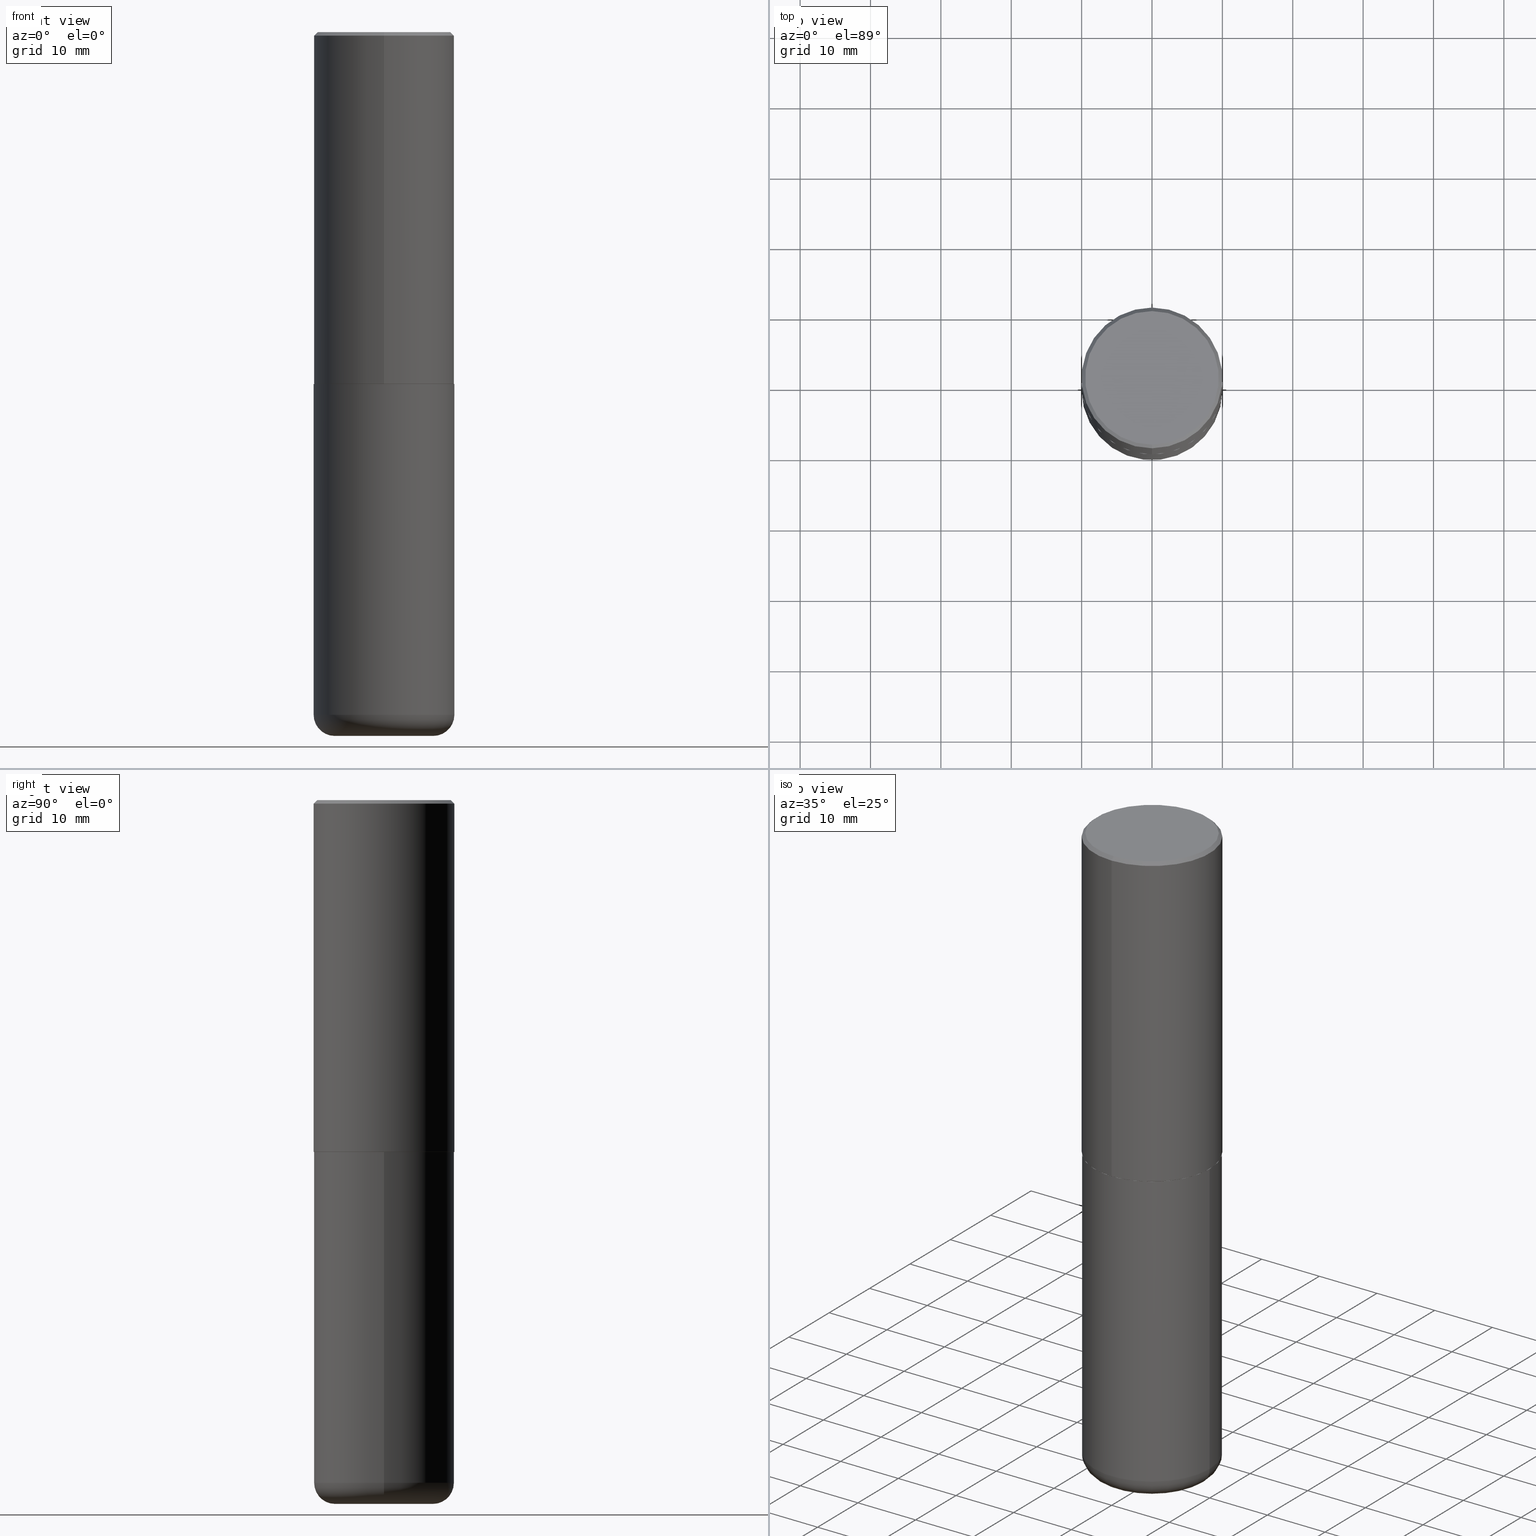
[diagram: canonical four-view strip — front | top / right | iso, engineering-drawing reading convention]
A machine part, canonical four-view strip (front | top / right | iso — engineering-drawing reading convention). The complete STEP part file that produces these views, byte-faithful:
ISO-10303-21;
HEADER;
FILE_DESCRIPTION (( 'STEP AP203' ),
    '1' );
FILE_NAME ('74649.STEP',
    '2024-03-06T15:51:12',
    ( '' ),
    ( '' ),
    'SwSTEP 2.0',
    'SolidWorks 2023',
    '' );
FILE_SCHEMA (( 'CONFIG_CONTROL_DESIGN' ));
ENDSEC;

DATA;
#1 = CARTESIAN_POINT ( 'NONE',  ( 2.793854037008762797E-15, 0.3926999999999931101, -1.968500000000001693 ) ) ;
#2 = DIRECTION ( 'NONE',  ( -6.982962677686265133E-15, -1.000000000000000000, 3.491137977679279424E-15 ) ) ;
#3 = AXIS2_PLACEMENT_3D ( 'NONE', #91, #248, #215 ) ;
#4 = EDGE_LOOP ( 'NONE', ( #75, #83, #159, #365 ) ) ;
#5 = DIRECTION ( 'NONE',  ( -2.447902336346030930E-29, 3.487996385144809755E-15, 1.000000000000000000 ) ) ;
#6 = CARTESIAN_POINT ( 'NONE',  ( 0.2756000000000000116, -1.567046654499579837E-14, -3.937000000000000277 ) ) ;
#7 = ORIENTED_EDGE ( 'NONE', *, *, #229, .F. ) ;
#8 =( LENGTH_UNIT ( ) NAMED_UNIT ( * ) SI_UNIT ( $, .METRE. ) );
#9 = ORIENTED_EDGE ( 'NONE', *, *, #338, .T. ) ;
#10 = DATE_TIME_ROLE ( 'creation_date' ) ;
#11 = VERTEX_POINT ( 'NONE', #177 ) ;
#12 = AXIS2_PLACEMENT_3D ( 'NONE', #307, #114, #311 ) ;
#13 = PERSON_AND_ORGANIZATION_ROLE ( 'creator' ) ;
#14 = ADVANCED_FACE ( 'NONE', ( #15 ), #238, .T. ) ;
#15 = FACE_OUTER_BOUND ( 'NONE', #4, .T. ) ;
#16 = CIRCLE ( 'NONE', #121, 0.3937000000000002720 ) ;
#17 = APPROVAL_DATE_TIME ( #210, #137 ) ;
#18 = EDGE_CURVE ( 'NONE', #11, #260, #16, .T. ) ;
#19 = PERSON_AND_ORGANIZATION ( #86, #180 ) ;
#20 = ADVANCED_FACE ( 'NONE', ( #149 ), #406, .T. ) ;
#21 = CARTESIAN_POINT ( 'NONE',  ( 1.599214952469751148E-45, -2.278708545868848433E-31, -6.533001454857425165E-17 ) ) ;
#22 = DIRECTION ( 'NONE',  ( -2.447902336346030930E-29, 3.487996385144809755E-15, 1.000000000000000000 ) ) ;
#23 = AXIS2_PLACEMENT_3D ( 'NONE', #204, #93, #166 ) ;
#24 = DIRECTION ( 'NONE',  ( -2.447902336346030930E-29, 3.487996385144809755E-15, 1.000000000000000000 ) ) ;
#25 = DIRECTION ( 'NONE',  ( -6.982962677686265133E-15, -1.000000000000000000, 3.478288761986584267E-15 ) ) ;
#26 = DIRECTION ( 'NONE',  ( 2.447902336346030930E-29, -3.487996385144809360E-15, -1.000000000000000000 ) ) ;
#27 = AXIS2_PLACEMENT_3D ( 'NONE', #287, #389, #100 ) ;
#28 = AXIS2_PLACEMENT_3D ( 'NONE', #102, #138, #36 ) ;
#29 = EDGE_CURVE ( 'NONE', #246, #89, #95, .T. ) ;
#30 = CARTESIAN_POINT ( 'NONE',  ( 0.3937000000000000499, -1.608281049111317408E-14, -3.818900000000000183 ) ) ;
#31 = CARTESIAN_POINT ( 'NONE',  ( 2.609533152651357803E-15, 0.3737000000000000322, -1.336129256402902755E-15 ) ) ;
#32 = ORIENTED_EDGE ( 'NONE', *, *, #375, .T. ) ;
#33 = PERSON_AND_ORGANIZATION ( #86, #180 ) ;
#34 = DIRECTION ( 'NONE',  ( -2.447902336346030930E-29, 3.487996385144809755E-15, 1.000000000000000000 ) ) ;
#35 = EDGE_LOOP ( 'NONE', ( #418, #141, #64, #297 ) ) ;
#36 = DIRECTION ( 'NONE',  ( 1.000000000000000000, -6.982962677686268288E-15, 4.883557194083112901E-29 ) ) ;
#37 = CARTESIAN_POINT ( 'NONE',  ( 4.818695749097162682E-29, -6.866120884157559141E-15, -1.968500000000000361 ) ) ;
#38 = VECTOR ( 'NONE', #148, 39.37007874015748854 ) ;
#39 = ORIENTED_EDGE ( 'NONE', *, *, #317, .T. ) ;
#40 = FACE_OUTER_BOUND ( 'NONE', #399, .T. ) ;
#41 = ORIENTED_EDGE ( 'NONE', *, *, #353, .T. ) ;
#42 = COORDINATED_UNIVERSAL_TIME_OFFSET ( 5, 0, .BEHIND. ) ;
#43 = ORIENTED_EDGE ( 'NONE', *, *, #208, .F. ) ;
#44 = CIRCLE ( 'NONE', #313, 0.3937000000000000499 ) ;
#45 = CIRCLE ( 'NONE', #272, 0.2756000000000000116 ) ;
#46 = ORIENTED_EDGE ( 'NONE', *, *, #151, .T. ) ;
#47 = PERSON_AND_ORGANIZATION ( #86, #180 ) ;
#48 = ADVANCED_FACE ( 'NONE', ( #337 ), #56, .T. ) ;
#49 = CLOSED_SHELL ( 'NONE', ( #309, #362, #277, #282, #415, #20, #332, #219 ) ) ;
#50 = CALENDAR_DATE ( 2024, 6, 3 ) ;
#51 = PRODUCT ( '74649', '74649', '', ( #163 ) ) ;
#52 = LOCAL_TIME ( 10, 51, 12.00000000000000000, #302 ) ;
#53 = CARTESIAN_POINT ( 'NONE',  ( 4.895804672692082949E-31, -6.975992770289649092E-17, -0.02000000000000008715 ) ) ;
#54 = AXIS2_PLACEMENT_3D ( 'NONE', #63, #133, #385 ) ;
#55 = DIRECTION ( 'NONE',  ( -6.982962677686265922E-15, -1.000000000000000000, 3.487996385144809755E-15 ) ) ;
#56 = PLANE ( 'NONE',  #360 ) ;
#57 = CARTESIAN_POINT ( 'NONE',  ( 0.3937000000000000499, -2.749192406205083217E-15, 1.919750796630860172E-29 ) ) ;
#58 = EDGE_CURVE ( 'NONE', #323, #268, #106, .T. ) ;
#59 = DIRECTION ( 'NONE',  ( 4.937700262164543309E-15, 0.7071067811865444641, -0.7071067811865503483 ) ) ;
#60 = DIRECTION ( 'NONE',  ( 1.000000000000000000, -6.982962677686265922E-15, 4.876176775795935793E-29 ) ) ;
#61 = AXIS2_PLACEMENT_3D ( 'NONE', #394, #306, #285 ) ;
#62 = APPROVAL_PERSON_ORGANIZATION ( #226, #137, #388 ) ;
#63 = CARTESIAN_POINT ( 'NONE',  ( 9.339000823940418668E-29, -1.333361808490808928E-14, -3.818900000000000183 ) ) ;
#64 = ORIENTED_EDGE ( 'NONE', *, *, #366, .T. ) ;
#65 = EDGE_CURVE ( 'NONE', #11, #104, #266, .T. ) ;
#66 = PERSON_AND_ORGANIZATION ( #86, #180 ) ;
#67 = DIRECTION ( 'NONE',  ( -6.982962677686265922E-15, -1.000000000000000000, 3.487996385144809755E-15 ) ) ;
#68 = ORIENTED_EDGE ( 'NONE', *, *, #317, .F. ) ;
#69 = PERSON_AND_ORGANIZATION_ROLE ( 'design_owner' ) ;
#70 = CARTESIAN_POINT ( 'NONE',  ( -2.700978061722651252E-15, -0.3937000000000001054, -0.01999999999999870978 ) ) ;
#71 = AXIS2_PLACEMENT_3D ( 'NONE', #279, #22, #116 ) ;
#72 = CONICAL_SURFACE ( 'NONE', #240, 0.3937000000000000499, 0.7853981633974476129 ) ;
#73 = ORIENTED_EDGE ( 'NONE', *, *, #199, .T. ) ;
#74 = DIRECTION ( 'NONE',  ( 0.000000000000000000, 0.000000000000000000, 1.000000000000000000 ) ) ;
#75 = ORIENTED_EDGE ( 'NONE', *, *, #79, .F. ) ;
#76 = CC_DESIGN_PERSON_AND_ORGANIZATION_ASSIGNMENT ( #66, #69, ( #51 ) ) ;
#77 = PERSON_AND_ORGANIZATION ( #86, #180 ) ;
#78 = AXIS2_PLACEMENT_3D ( 'NONE', #146, #414, #255 ) ;
#79 = EDGE_CURVE ( 'NONE', #323, #379, #231, .T. ) ;
#80 = APPROVAL_DATE_TIME ( #242, #273 ) ;
#81 = SECURITY_CLASSIFICATION_LEVEL ( 'unclassified' ) ;
#82 = VECTOR ( 'NONE', #94, 39.37007874015748143 ) ;
#83 = ORIENTED_EDGE ( 'NONE', *, *, #58, .T. ) ;
#84 = FACE_OUTER_BOUND ( 'NONE', #345, .T. ) ;
#85 = DIRECTION ( 'NONE',  ( 2.438088387897960049E-29, -3.491481338843145188E-15, -1.000000000000000000 ) ) ;
#86 = PERSON ( 'UNSPECIFIED', 'UNSPECIFIED', 'UNSPECIFIED', ('UNSPECIFIED'), ('UNSPECIFIED'), ('UNSPECIFIED') ) ;
#87 = EDGE_CURVE ( 'NONE', #390, #110, #312, .T. ) ;
#88 = LINE ( 'NONE', #218, #398 ) ;
#89 = VERTEX_POINT ( 'NONE', #6 ) ;
#90 = CARTESIAN_POINT ( 'NONE',  ( 0.3937000000000000499, -9.622173421717814924E-15, -1.968500000000000139 ) ) ;
#91 = CARTESIAN_POINT ( 'NONE',  ( 9.627810689950883669E-29, -1.374596203102546341E-14, -3.937000000000000277 ) ) ;
#92 = CARTESIAN_POINT ( 'NONE',  ( -0.3937000000000000499, -1.053621133422057529E-14, -3.818900000000000183 ) ) ;
#93 = DIRECTION ( 'NONE',  ( -2.445468806185136597E-29, 3.491481338843145583E-15, 1.000000000000000000 ) ) ;
#94 = DIRECTION ( 'NONE',  ( -2.445468806185136877E-29, 3.491481338843145188E-15, 1.000000000000000000 ) ) ;
#95 = CIRCLE ( 'NONE', #3, 0.2756000000000000116 ) ;
#96 = EDGE_CURVE ( 'NONE', #264, #379, #157, .T. ) ;
#97 = AXIS2_PLACEMENT_3D ( 'NONE', #156, #284, #247 ) ;
#98 = VERTEX_POINT ( 'NONE', #227 ) ;
#99 = CARTESIAN_POINT ( 'NONE',  ( 0.2756000000000000116, -1.525812259887842581E-14, -3.818900000000000183 ) ) ;
#100 = DIRECTION ( 'NONE',  ( 1.000000000000000000, -6.982962677686265133E-15, 0.000000000000000000 ) ) ;
#101 = ORIENTED_EDGE ( 'NONE', *, *, #18, .T. ) ;
#102 = CARTESIAN_POINT ( 'NONE',  ( 9.339000823940418668E-29, -1.333361808490808928E-14, -3.818900000000000183 ) ) ;
#103 = CARTESIAN_POINT ( 'NONE',  ( 0.000000000000000000, 0.000000000000000000, 0.000000000000000000 ) ) ;
#104 = VERTEX_POINT ( 'NONE', #70 ) ;
#105 = CALENDAR_DATE ( 2024, 6, 3 ) ;
#106 = CIRCLE ( 'NONE', #129, 0.3937000000000000499 ) ;
#107 = VECTOR ( 'NONE', #347, 39.37007874015748854 ) ;
#108 = ORIENTED_EDGE ( 'NONE', *, *, #410, .T. ) ;
#109 = CC_DESIGN_DATE_AND_TIME_ASSIGNMENT ( #179, #402, ( #175 ) ) ;
#110 = VERTEX_POINT ( 'NONE', #195 ) ;
#111 = AXIS2_PLACEMENT_3D ( 'NONE', #170, #74, #135 ) ;
#112 = PRODUCT_DEFINITION_SHAPE ( 'NONE', 'NONE',  #371 ) ;
#113 = CC_DESIGN_APPROVAL ( #137, ( #243 ) ) ;
#114 = DIRECTION ( 'NONE',  ( -2.447902336346030930E-29, 3.487996385144809360E-15, 1.000000000000000000 ) ) ;
#115 = DIRECTION ( 'NONE',  ( 6.982962677686265922E-15, 1.000000000000000000, -3.487996385144809360E-15 ) ) ;
#116 = DIRECTION ( 'NONE',  ( -6.982962677686265133E-15, -1.000000000000000000, 3.478288761986584267E-15 ) ) ;
#117 = MANIFOLD_SOLID_BREP ( 'Body-Move/Copy2[1]', #335 ) ;
#118 = CC_DESIGN_PERSON_AND_ORGANIZATION_ASSIGNMENT ( #298, #403, ( #243 ) ) ;
#119 = ORIENTED_EDGE ( 'NONE', *, *, #186, .T. ) ;
#120 = DIRECTION ( 'NONE',  ( 1.000000000000000000, -6.982962677686265922E-15, 0.000000000000000000 ) ) ;
#121 = AXIS2_PLACEMENT_3D ( 'NONE', #256, #381, #152 ) ;
#122 = AXIS2_PLACEMENT_3D ( 'NONE', #216, #85, #339 ) ;
#123 = DIRECTION ( 'NONE',  ( 2.447902336346030930E-29, -3.487996385144809755E-15, -1.000000000000000000 ) ) ;
#124 = CARTESIAN_POINT ( 'NONE',  ( -0.2756000000000000116, -1.116195879274560421E-14, -3.937000000000000277 ) ) ;
#125 = APPLICATION_PROTOCOL_DEFINITION ( 'international standard', 'config_control_design', 1994, #205 ) ;
#126 = DIRECTION ( 'NONE',  ( -2.447902336346030930E-29, 3.487996385144809755E-15, 1.000000000000000000 ) ) ;
#127 = EDGE_LOOP ( 'NONE', ( #275, #39, #316, #329 ) ) ;
#128 = DATE_AND_TIME ( #296, #377 ) ;
#129 = AXIS2_PLACEMENT_3D ( 'NONE', #310, #303, #262 ) ;
#130 = DIRECTION ( 'NONE',  ( -2.447902336346030930E-29, 3.487996385144809755E-15, 1.000000000000000000 ) ) ;
#131 = ORIENTED_EDGE ( 'NONE', *, *, #338, .F. ) ;
#132 = DIRECTION ( 'NONE',  ( 1.000000000000000000, -6.982962677686273021E-15, 0.000000000000000000 ) ) ;
#133 = DIRECTION ( 'NONE',  ( -2.445468806185136597E-29, 3.491481338843145583E-15, 1.000000000000000000 ) ) ;
#134 = ORIENTED_EDGE ( 'NONE', *, *, #29, .F. ) ;
#135 = DIRECTION ( 'NONE',  ( 1.000000000000000000, 0.000000000000000000, 0.000000000000000000 ) ) ;
#136 = VERTEX_POINT ( 'NONE', #417 ) ;
#137 = APPROVAL ( #261, 'UNSPECIFIED' ) ;
#138 = DIRECTION ( 'NONE',  ( -2.445468806185136597E-29, 3.491481338843145583E-15, 1.000000000000000000 ) ) ;
#139 = CIRCLE ( 'NONE', #78, 0.1180999999999999966 ) ;
#140 = VECTOR ( 'NONE', #374, 39.37007874015748854 ) ;
#141 = ORIENTED_EDGE ( 'NONE', *, *, #342, .F. ) ;
#142 = ADVANCED_FACE ( 'NONE', ( #40 ), #222, .T. ) ;
#143 = LOCAL_TIME ( 10, 51, 12.00000000000000000, #351 ) ;
#144 = APPROVAL_ROLE ( '' ) ;
#145 = EDGE_CURVE ( 'NONE', #269, #104, #44, .T. ) ;
#146 = CARTESIAN_POINT ( 'NONE',  ( -0.2756000000000000116, -1.137536230515325427E-14, -3.818900000000000183 ) ) ;
#147 = AXIS2_PLACEMENT_3D ( 'NONE', #21, #376, #55 ) ;
#148 = DIRECTION ( 'NONE',  ( -4.851104656540959542E-15, -0.7071067811865493491, -0.7071067811865454633 ) ) ;
#149 = FACE_OUTER_BOUND ( 'NONE', #197, .T. ) ;
#150 = CARTESIAN_POINT ( 'NONE',  ( 4.895804672692082949E-31, -6.975992770289649092E-17, -0.02000000000000008715 ) ) ;
#151 = EDGE_CURVE ( 'NONE', #268, #323, #251, .T. ) ;
#152 = DIRECTION ( 'NONE',  ( -6.982962677686265922E-15, -1.000000000000000000, 3.469453890861393601E-15 ) ) ;
#153 = ORIENTED_EDGE ( 'NONE', *, *, #342, .T. ) ;
#154 = DIRECTION ( 'NONE',  ( 2.447902336346030930E-29, -3.487996385144809755E-15, -1.000000000000000000 ) ) ;
#155 = DESIGN_CONTEXT ( 'detailed design', #205, 'design' ) ;
#156 = CARTESIAN_POINT ( 'NONE',  ( 4.816247846760815671E-29, -6.862632887772413316E-15, -1.967500000000000027 ) ) ;
#157 = CIRCLE ( 'NONE', #27, 0.3937000000000000499 ) ;
#158 = AXIS2_PLACEMENT_3D ( 'NONE', #31, #26, #115 ) ;
#159 = ORIENTED_EDGE ( 'NONE', *, *, #263, .T. ) ;
#160 = DIRECTION ( 'NONE',  ( 6.982962677686265133E-15, 1.000000000000000000, -3.491137977679279424E-15 ) ) ;
#161 = FACE_OUTER_BOUND ( 'NONE', #225, .T. ) ;
#162 = ORIENTED_EDGE ( 'NONE', *, *, #254, .F. ) ;
#163 = MECHANICAL_CONTEXT ( 'NONE', #178, 'mechanical' ) ;
#164 = DIRECTION ( 'NONE',  ( -2.447902336346030930E-29, 3.487996385144809360E-15, 1.000000000000000000 ) ) ;
#165 = ORIENTED_EDGE ( 'NONE', *, *, #353, .F. ) ;
#166 = DIRECTION ( 'NONE',  ( 1.000000000000000000, -6.982962677686265133E-15, 0.000000000000000000 ) ) ;
#167 = DIRECTION ( 'NONE',  ( -2.447902336346030930E-29, 3.487996385144809755E-15, 1.000000000000000000 ) ) ;
#168 = AXIS2_PLACEMENT_3D ( 'NONE', #220, #171, #322 ) ;
#169 = ORIENTED_EDGE ( 'NONE', *, *, #229, .T. ) ;
#170 = CARTESIAN_POINT ( 'NONE',  ( 0.000000000000000000, 0.000000000000000000, 0.000000000000000000 ) ) ;
#171 = DIRECTION ( 'NONE',  ( -2.445468806185136597E-29, 3.491481338843145583E-15, 1.000000000000000000 ) ) ;
#172 = ORIENTED_EDGE ( 'NONE', *, *, #199, .F. ) ;
#173 = ORIENTED_EDGE ( 'NONE', *, *, #208, .T. ) ;
#174 = LOCAL_TIME ( 10, 51, 12.00000000000000000, #207 ) ;
#175 = SECURITY_CLASSIFICATION ( '', '', #81 ) ;
#176 = PRODUCT_RELATED_PRODUCT_CATEGORY ( 'detail', '', ( #51 ) ) ;
#177 = CARTESIAN_POINT ( 'NONE',  ( -2.749192406205036674E-15, -0.3937000000000070998, -1.967499999999998694 ) ) ;
#178 = APPLICATION_CONTEXT ( 'configuration controlled 3d designs of mechanical parts and assemblies' ) ;
#179 = DATE_AND_TIME ( #300, #174 ) ;
#180 = ORGANIZATION ( 'UNSPECIFIED', 'UNSPECIFIED', '' ) ;
#181 = DIMENSIONAL_EXPONENTS ( 1.000000000000000000, 0.000000000000000000, 0.000000000000000000, 0.000000000000000000, 0.000000000000000000, 0.000000000000000000, 0.000000000000000000 ) ;
#182 = CC_DESIGN_PERSON_AND_ORGANIZATION_ASSIGNMENT ( #19, #13, ( #243 ) ) ;
#183 = DIRECTION ( 'NONE',  ( 2.438088387897960049E-29, -3.491481338843145188E-15, -1.000000000000000000 ) ) ;
#184 = FACE_OUTER_BOUND ( 'NONE', #196, .T. ) ;
#185 =( GEOMETRIC_REPRESENTATION_CONTEXT ( 3 ) GLOBAL_UNCERTAINTY_ASSIGNED_CONTEXT ( ( #327 ) ) GLOBAL_UNIT_ASSIGNED_CONTEXT ( ( #391, #321, #288 ) ) REPRESENTATION_CONTEXT ( 'NONE', 'WORKASPACE' ) );
#186 = EDGE_CURVE ( 'NONE', #98, #136, #213, .T. ) ;
#187 = LINE ( 'NONE', #281, #331 ) ;
#188 = CARTESIAN_POINT ( 'NONE',  ( 0.000000000000000000, 0.000000000000000000, 0.000000000000000000 ) ) ;
#189 = CARTESIAN_POINT ( 'NONE',  ( 9.627810689950883669E-29, -1.374596203102546341E-14, -3.937000000000000277 ) ) ;
#190 = FACE_OUTER_BOUND ( 'NONE', #35, .T. ) ;
#191 = LINE ( 'NONE', #314, #38 ) ;
#192 = CC_DESIGN_APPROVAL ( #384, ( #371 ) ) ;
#193 = PLANE ( 'NONE',  #158 ) ;
#194 = LENGTH_MEASURE_WITH_UNIT ( LENGTH_MEASURE( 0.02539999999999999897 ), #8 );
#195 = CARTESIAN_POINT ( 'NONE',  ( -2.742209443527348687E-15, -0.3927000000000069324, -1.968499999999999028 ) ) ;
#196 = EDGE_LOOP ( 'NONE', ( #43, #201 ) ) ;
#197 = EDGE_LOOP ( 'NONE', ( #7, #354, #320, #68 ) ) ;
#198 = CYLINDRICAL_SURFACE ( 'NONE', #367, 0.3937000000000001609 ) ;
#199 = EDGE_CURVE ( 'NONE', #104, #269, #404, .T. ) ;
#200 = DIRECTION ( 'NONE',  ( -2.445468806185136597E-29, 3.491481338843145583E-15, 1.000000000000000000 ) ) ;
#201 = ORIENTED_EDGE ( 'NONE', *, *, #87, .F. ) ;
#202 = PERSON_AND_ORGANIZATION_ROLE ( 'creator' ) ;
#203 = ORIENTED_EDGE ( 'NONE', *, *, #366, .F. ) ;
#204 = CARTESIAN_POINT ( 'NONE',  ( 4.813905344975441835E-29, -6.872981015512731707E-15, -1.968500000000000139 ) ) ;
#205 = APPLICATION_CONTEXT ( 'configuration controlled 3d designs of mechanical parts and assemblies' ) ;
#206 = AXIS2_PLACEMENT_3D ( 'NONE', #188, #378, #308 ) ;
#207 = COORDINATED_UNIVERSAL_TIME_OFFSET ( 5, 0, .BEHIND. ) ;
#208 = EDGE_CURVE ( 'NONE', #110, #390, #407, .T. ) ;
#209 = TOROIDAL_SURFACE ( 'NONE', #28, 0.2756000000000000116, 0.1181000000000000105 ) ;
#210 = DATE_AND_TIME ( #368, #299 ) ;
#211 = ADVANCED_FACE ( 'NONE', ( #293 ), #392, .T. ) ;
#212 = CARTESIAN_POINT ( 'NONE',  ( 2.797406750687540030E-15, 0.3936999999999934441, -1.967500000000001359 ) ) ;
#213 = CIRCLE ( 'NONE', #340, 0.3737000000000000322 ) ;
#214 = CARTESIAN_POINT ( 'NONE',  ( 4.818695749097162682E-29, -6.866120884157559141E-15, -1.968500000000000361 ) ) ;
#215 = DIRECTION ( 'NONE',  ( 1.000000000000000000, -6.982962677686265922E-15, 0.000000000000000000 ) ) ;
#216 = CARTESIAN_POINT ( 'NONE',  ( 4.813905344975441835E-29, -6.872981015512731707E-15, -1.968500000000000139 ) ) ;
#217 = ORIENTED_EDGE ( 'NONE', *, *, #263, .F. ) ;
#218 = CARTESIAN_POINT ( 'NONE',  ( 2.749192406205083217E-15, 0.3936999999999999389, -0.02000000000000146105 ) ) ;
#219 = ADVANCED_FACE ( 'NONE', ( #161 ), #193, .F. ) ;
#220 = CARTESIAN_POINT ( 'NONE',  ( 9.339000823940418668E-29, -1.333361808490808928E-14, -3.818900000000000183 ) ) ;
#221 = LINE ( 'NONE', #252, #140 ) ;
#222 = TOROIDAL_SURFACE ( 'NONE', #54, 0.2756000000000000116, 0.1181000000000000105 ) ;
#223 = VECTOR ( 'NONE', #286, 39.37007874015748143 ) ;
#224 = DIRECTION ( 'NONE',  ( -2.447902336346030930E-29, 3.487996385144809755E-15, 1.000000000000000000 ) ) ;
#225 = EDGE_LOOP ( 'NONE', ( #153, #119 ) ) ;
#226 = PERSON_AND_ORGANIZATION ( #86, #180 ) ;
#227 = CARTESIAN_POINT ( 'NONE',  ( -2.632373081744936315E-15, -0.3737000000000000322, 1.238134234580041113E-15 ) ) ;
#228 = ORIENTED_EDGE ( 'NONE', *, *, #65, .F. ) ;
#229 = EDGE_CURVE ( 'NONE', #390, #260, #346, .T. ) ;
#230 = APPLICATION_PROTOCOL_DEFINITION ( 'international standard', 'config_control_design', 1994, #178 ) ;
#231 = LINE ( 'NONE', #325, #82 ) ;
#232 = ORIENTED_EDGE ( 'NONE', *, *, #186, .F. ) ;
#233 = APPROVAL_DATE_TIME ( #318, #384 ) ;
#234 = CIRCLE ( 'NONE', #23, 0.3937000000000000499 ) ;
#235 = EDGE_LOOP ( 'NONE', ( #165, #253, #357, #294 ) ) ;
#236 = CARTESIAN_POINT ( 'NONE',  ( 0.000000000000000000, 0.000000000000000000, 0.000000000000000000 ) ) ;
#237 = ORIENTED_EDGE ( 'NONE', *, *, #18, .F. ) ;
#238 = CYLINDRICAL_SURFACE ( 'NONE', #61, 0.3937000000000000499 ) ;
#239 = AXIS2_PLACEMENT_3D ( 'NONE', #259, #126, #352 ) ;
#240 = AXIS2_PLACEMENT_3D ( 'NONE', #53, #123, #160 ) ;
#241 = ADVANCED_FACE ( 'NONE', ( #84 ), #380, .F. ) ;
#242 = DATE_AND_TIME ( #50, #52 ) ;
#243 = PRODUCT_DEFINITION_FORMATION_WITH_SPECIFIED_SOURCE ( 'ANY', '', #51, .NOT_KNOWN. ) ;
#244 = CC_DESIGN_PERSON_AND_ORGANIZATION_ASSIGNMENT ( #33, #202, ( #371 ) ) ;
#245 = CYLINDRICAL_SURFACE ( 'NONE', #206, 0.3937000000000001609 ) ;
#246 = VERTEX_POINT ( 'NONE', #124 ) ;
#247 = DIRECTION ( 'NONE',  ( -6.982962677686265922E-15, -1.000000000000000000, 3.469453890861393601E-15 ) ) ;
#248 = DIRECTION ( 'NONE',  ( -2.445468806185136597E-29, 3.491481338843145583E-15, 1.000000000000000000 ) ) ;
#249 = CC_DESIGN_APPROVAL ( #273, ( #175 ) ) ;
#250 = EDGE_LOOP ( 'NONE', ( #131, #134 ) ) ;
#251 = CIRCLE ( 'NONE', #168, 0.3937000000000000499 ) ;
#252 = CARTESIAN_POINT ( 'NONE',  ( -2.742209443527348687E-15, -0.3927000000000069324, -1.968499999999999028 ) ) ;
#253 = ORIENTED_EDGE ( 'NONE', *, *, #29, .T. ) ;
#254 = EDGE_CURVE ( 'NONE', #110, #11, #221, .T. ) ;
#255 = DIRECTION ( 'NONE',  ( -1.000000000000000000, 7.105427357601005014E-15, 0.000000000000000000 ) ) ;
#256 = CARTESIAN_POINT ( 'NONE',  ( 4.816247846760815671E-29, -6.862632887772413316E-15, -1.967500000000000027 ) ) ;
#257 = LINE ( 'NONE', #57, #223 ) ;
#258 = APPROVAL_ROLE ( '' ) ;
#259 = CARTESIAN_POINT ( 'NONE',  ( 4.818695749097162682E-29, -6.866120884157559141E-15, -1.968500000000000361 ) ) ;
#260 = VERTEX_POINT ( 'NONE', #212 ) ;
#261 = APPROVAL_STATUS ( 'not_yet_approved' ) ;
#262 = DIRECTION ( 'NONE',  ( 1.000000000000000000, -6.982962677686267499E-15, 0.000000000000000000 ) ) ;
#263 = EDGE_CURVE ( 'NONE', #268, #264, #257, .T. ) ;
#264 = VERTEX_POINT ( 'NONE', #90 ) ;
#265 = FACE_OUTER_BOUND ( 'NONE', #235, .T. ) ;
#266 = LINE ( 'NONE', #358, #270 ) ;
#267 = MANIFOLD_SOLID_BREP ( 'Body-Move/Copy2[2]', #49 ) ;
#268 = VERTEX_POINT ( 'NONE', #30 ) ;
#269 = VERTEX_POINT ( 'NONE', #343 ) ;
#270 = VECTOR ( 'NONE', #164, 39.37007874015748143 ) ;
#271 = CIRCLE ( 'NONE', #369, 0.1180999999999999966 ) ;
#272 = AXIS2_PLACEMENT_3D ( 'NONE', #412, #278, #120 ) ;
#273 = APPROVAL ( #334, 'UNSPECIFIED' ) ;
#274 = PERSON_AND_ORGANIZATION_ROLE ( 'classification_officer' ) ;
#275 = ORIENTED_EDGE ( 'NONE', *, *, #328, .F. ) ;
#276 = FACE_OUTER_BOUND ( 'NONE', #326, .T. ) ;
#277 = ADVANCED_FACE ( 'NONE', ( #350 ), #336, .T. ) ;
#278 = DIRECTION ( 'NONE',  ( -2.445468806185136597E-29, 3.491481338843145583E-15, 1.000000000000000000 ) ) ;
#279 = CARTESIAN_POINT ( 'NONE',  ( 4.818695749097162682E-29, -6.866120884157559141E-15, -1.968500000000000361 ) ) ;
#280 = ORIENTED_EDGE ( 'NONE', *, *, #401, .F. ) ;
#281 = CARTESIAN_POINT ( 'NONE',  ( 2.797406750687515181E-15, 0.3937000000000001609, -1.373224176831512065E-15 ) ) ;
#282 = ADVANCED_FACE ( 'NONE', ( #190 ), #72, .T. ) ;
#283 = AXIS2_PLACEMENT_3D ( 'NONE', #319, #34, #348 ) ;
#284 = DIRECTION ( 'NONE',  ( -2.447902336346030930E-29, 3.487996385144809755E-15, 1.000000000000000000 ) ) ;
#285 = DIRECTION ( 'NONE',  ( 1.000000000000000000, -6.982962677686265922E-15, 4.876176775795935793E-29 ) ) ;
#286 = DIRECTION ( 'NONE',  ( -2.445468806185136877E-29, 3.491481338843145188E-15, 1.000000000000000000 ) ) ;
#287 = CARTESIAN_POINT ( 'NONE',  ( 4.813905344975441835E-29, -6.872981015512731707E-15, -1.968500000000000139 ) ) ;
#288 =( NAMED_UNIT ( * ) SI_UNIT ( $, .STERADIAN. ) SOLID_ANGLE_UNIT ( ) );
#289 = CC_DESIGN_PERSON_AND_ORGANIZATION_ASSIGNMENT ( #47, #274, ( #175 ) ) ;
#290 = CARTESIAN_POINT ( 'NONE',  ( 4.895804672692082949E-31, -6.975992770289649092E-17, -0.02000000000000008715 ) ) ;
#291 = CONICAL_SURFACE ( 'NONE', #372, 0.3926999999999999935, 0.7853981633974141952 ) ;
#292 = FACE_OUTER_BOUND ( 'NONE', #127, .T. ) ;
#293 = FACE_OUTER_BOUND ( 'NONE', #373, .T. ) ;
#294 = ORIENTED_EDGE ( 'NONE', *, *, #58, .F. ) ;
#295 = CARTESIAN_POINT ( 'NONE',  ( -0.3937000000000000499, -7.305892799522895709E-15, -1.968500000000000139 ) ) ;
#296 = CALENDAR_DATE ( 2024, 6, 3 ) ;
#297 = ORIENTED_EDGE ( 'NONE', *, *, #145, .T. ) ;
#298 = PERSON_AND_ORGANIZATION ( #86, #180 ) ;
#299 = LOCAL_TIME ( 10, 51, 12.00000000000000000, #333 ) ;
#300 = CALENDAR_DATE ( 2024, 6, 3 ) ;
#301 = AXIS2_PLACEMENT_3D ( 'NONE', #37, #167, #315 ) ;
#302 = COORDINATED_UNIVERSAL_TIME_OFFSET ( 5, 0, .BEHIND. ) ;
#303 = DIRECTION ( 'NONE',  ( -2.445468806185136597E-29, 3.491481338843145583E-15, 1.000000000000000000 ) ) ;
#304 = CC_DESIGN_DATE_AND_TIME_ASSIGNMENT ( #128, #10, ( #371 ) ) ;
#305 = PLANE ( 'NONE',  #12 ) ;
#306 = DIRECTION ( 'NONE',  ( -2.445468806185136597E-29, 3.491481338843145583E-15, 1.000000000000000000 ) ) ;
#307 = CARTESIAN_POINT ( 'NONE',  ( 4.818695749097161561E-29, -6.866120884157558352E-15, -1.968500000000000139 ) ) ;
#308 = DIRECTION ( 'NONE',  ( -6.982962677686265922E-15, -1.000000000000000000, 3.487996385144809360E-15 ) ) ;
#309 = ADVANCED_FACE ( 'NONE', ( #382 ), #291, .T. ) ;
#310 = CARTESIAN_POINT ( 'NONE',  ( 9.339000823940418668E-29, -1.333361808490808928E-14, -3.818900000000000183 ) ) ;
#311 = DIRECTION ( 'NONE',  ( -6.982962677686265922E-15, -1.000000000000000000, 3.487996385144809360E-15 ) ) ;
#312 = CIRCLE ( 'NONE', #239, 0.3926999999999999935 ) ;
#313 = AXIS2_PLACEMENT_3D ( 'NONE', #290, #224, #2 ) ;
#314 = CARTESIAN_POINT ( 'NONE',  ( -2.700978061722651252E-15, -0.3937000000000001054, -0.01999999999999870978 ) ) ;
#315 = DIRECTION ( 'NONE',  ( -6.982962677686265133E-15, -1.000000000000000000, 3.478288761986584267E-15 ) ) ;
#316 = ORIENTED_EDGE ( 'NONE', *, *, #65, .T. ) ;
#317 = EDGE_CURVE ( 'NONE', #260, #11, #361, .T. ) ;
#318 = DATE_AND_TIME ( #105, #143 ) ;
#319 = CARTESIAN_POINT ( 'NONE',  ( 4.895804672692082949E-31, -6.975992770289649092E-17, -0.02000000000000008715 ) ) ;
#320 = ORIENTED_EDGE ( 'NONE', *, *, #254, .T. ) ;
#321 =( NAMED_UNIT ( * ) PLANE_ANGLE_UNIT ( ) SI_UNIT ( $, .RADIAN. ) );
#322 = DIRECTION ( 'NONE',  ( 1.000000000000000000, -6.982962677686267499E-15, 0.000000000000000000 ) ) ;
#323 = VERTEX_POINT ( 'NONE', #92 ) ;
#324 = APPROVAL_PERSON_ORGANIZATION ( #355, #384, #258 ) ;
#325 = CARTESIAN_POINT ( 'NONE',  ( -0.3937000000000000499, 2.797406750687514786E-15, -1.936584745033356735E-29 ) ) ;
#326 = EDGE_LOOP ( 'NONE', ( #101, #397, #172, #228 ) ) ;
#327 = UNCERTAINTY_MEASURE_WITH_UNIT (LENGTH_MEASURE( 1.000000000000000082E-05 ), #391, 'distance_accuracy_value', 'NONE');
#328 = EDGE_CURVE ( 'NONE', #260, #269, #187, .T. ) ;
#329 = ORIENTED_EDGE ( 'NONE', *, *, #145, .F. ) ;
#330 = CC_DESIGN_SECURITY_CLASSIFICATION ( #175, ( #243 ) ) ;
#331 = VECTOR ( 'NONE', #416, 39.37007874015748143 ) ;
#332 = ADVANCED_FACE ( 'NONE', ( #184 ), #305, .F. ) ;
#333 = COORDINATED_UNIVERSAL_TIME_OFFSET ( 5, 0, .BEHIND. ) ;
#334 = APPROVAL_STATUS ( 'not_yet_approved' ) ;
#335 = CLOSED_SHELL ( 'NONE', ( #211, #142, #241, #14, #405, #48 ) ) ;
#336 = CONICAL_SURFACE ( 'NONE', #387, 0.3937000000000000499, 0.7853981633974476129 ) ;
#337 = FACE_OUTER_BOUND ( 'NONE', #250, .T. ) ;
#338 = EDGE_CURVE ( 'NONE', #89, #246, #45, .T. ) ;
#339 = DIRECTION ( 'NONE',  ( -1.000000000000000000, 6.982962677686265922E-15, -4.876176775795935793E-29 ) ) ;
#340 = AXIS2_PLACEMENT_3D ( 'NONE', #356, #130, #67 ) ;
#341 = ORIENTED_EDGE ( 'NONE', *, *, #151, .F. ) ;
#342 = EDGE_CURVE ( 'NONE', #136, #98, #349, .T. ) ;
#343 = CARTESIAN_POINT ( 'NONE',  ( 2.749192406205083217E-15, 0.3936999999999999389, -0.02000000000000146105 ) ) ;
#344 = DIRECTION ( 'NONE',  ( -1.000000000000000000, 6.982962677686265922E-15, -4.876176775795935793E-29 ) ) ;
#345 = EDGE_LOOP ( 'NONE', ( #359, #108 ) ) ;
#346 = LINE ( 'NONE', #409, #107 ) ;
#347 = DIRECTION ( 'NONE',  ( 5.024295867787889629E-15, 0.7071067811865257013, 0.7071067811865691111 ) ) ;
#348 = DIRECTION ( 'NONE',  ( -6.982962677686265133E-15, -1.000000000000000000, 3.491137977679279424E-15 ) ) ;
#349 = CIRCLE ( 'NONE', #147, 0.3737000000000000322 ) ;
#350 = FACE_OUTER_BOUND ( 'NONE', #363, .T. ) ;
#351 = COORDINATED_UNIVERSAL_TIME_OFFSET ( 5, 0, .BEHIND. ) ;
#352 = DIRECTION ( 'NONE',  ( -6.982962677686265133E-15, -1.000000000000000000, 3.478288761986584267E-15 ) ) ;
#353 = EDGE_CURVE ( 'NONE', #246, #323, #139, .T. ) ;
#354 = ORIENTED_EDGE ( 'NONE', *, *, #87, .T. ) ;
#355 = PERSON_AND_ORGANIZATION ( #86, #180 ) ;
#356 = CARTESIAN_POINT ( 'NONE',  ( 1.599214952469751148E-45, -2.278708545868848433E-31, -6.533001454857425165E-17 ) ) ;
#357 = ORIENTED_EDGE ( 'NONE', *, *, #401, .T. ) ;
#358 = CARTESIAN_POINT ( 'NONE',  ( -2.749192406205084005E-15, -0.3937000000000001609, 1.373224176831512065E-15 ) ) ;
#359 = ORIENTED_EDGE ( 'NONE', *, *, #96, .T. ) ;
#360 = AXIS2_PLACEMENT_3D ( 'NONE', #189, #183, #344 ) ;
#361 = CIRCLE ( 'NONE', #97, 0.3937000000000002720 ) ;
#362 = ADVANCED_FACE ( 'NONE', ( #276 ), #245, .T. ) ;
#363 = EDGE_LOOP ( 'NONE', ( #232, #32, #73, #203 ) ) ;
#364 = DIRECTION ( 'NONE',  ( -6.982962677686265922E-15, -1.000000000000000000, 3.487996385144809360E-15 ) ) ;
#365 = ORIENTED_EDGE ( 'NONE', *, *, #410, .F. ) ;
#366 = EDGE_CURVE ( 'NONE', #136, #269, #88, .T. ) ;
#367 = AXIS2_PLACEMENT_3D ( 'NONE', #236, #5, #364 ) ;
#368 = CALENDAR_DATE ( 2024, 6, 3 ) ;
#369 = AXIS2_PLACEMENT_3D ( 'NONE', #99, #383, #132 ) ;
#370 = APPROVAL_PERSON_ORGANIZATION ( #77, #273, #144 ) ;
#371 = PRODUCT_DEFINITION ( 'UNKNOWN', '', #243, #155 ) ;
#372 = AXIS2_PLACEMENT_3D ( 'NONE', #214, #24, #25 ) ;
#373 = EDGE_LOOP ( 'NONE', ( #46, #408, #393, #217 ) ) ;
#374 = DIRECTION ( 'NONE',  ( -4.937700262164378437E-15, -0.7071067811865208164, 0.7071067811865739960 ) ) ;
#375 = EDGE_CURVE ( 'NONE', #98, #104, #191, .T. ) ;
#376 = DIRECTION ( 'NONE',  ( -2.447902336346030930E-29, 3.487996385144809755E-15, 1.000000000000000000 ) ) ;
#377 = LOCAL_TIME ( 10, 51, 12.00000000000000000, #42 ) ;
#378 = DIRECTION ( 'NONE',  ( -2.447902336346030930E-29, 3.487996385144809755E-15, 1.000000000000000000 ) ) ;
#379 = VERTEX_POINT ( 'NONE', #295 ) ;
#380 = PLANE ( 'NONE',  #122 ) ;
#381 = DIRECTION ( 'NONE',  ( -2.447902336346030930E-29, 3.487996385144809755E-15, 1.000000000000000000 ) ) ;
#382 = FACE_OUTER_BOUND ( 'NONE', #386, .T. ) ;
#383 = DIRECTION ( 'NONE',  ( -6.982962677686266711E-15, -1.000000000000000000, 3.491481338843145583E-15 ) ) ;
#384 = APPROVAL ( #395, 'UNSPECIFIED' ) ;
#385 = DIRECTION ( 'NONE',  ( 1.000000000000000000, -6.982962677686268288E-15, 4.883557194083112901E-29 ) ) ;
#386 = EDGE_LOOP ( 'NONE', ( #173, #169, #237, #162 ) ) ;
#387 = AXIS2_PLACEMENT_3D ( 'NONE', #150, #154, #411 ) ;
#388 = APPROVAL_ROLE ( '' ) ;
#389 = DIRECTION ( 'NONE',  ( -2.445468806185136597E-29, 3.491481338843145583E-15, 1.000000000000000000 ) ) ;
#390 = VERTEX_POINT ( 'NONE', #1 ) ;
#391 =( CONVERSION_BASED_UNIT ( 'INCH', #194 ) LENGTH_UNIT ( ) NAMED_UNIT ( #181 ) );
#392 = CYLINDRICAL_SURFACE ( 'NONE', #413, 0.3937000000000000499 ) ;
#393 = ORIENTED_EDGE ( 'NONE', *, *, #96, .F. ) ;
#394 = CARTESIAN_POINT ( 'NONE',  ( 0.000000000000000000, 0.000000000000000000, 0.000000000000000000 ) ) ;
#395 = APPROVAL_STATUS ( 'not_yet_approved' ) ;
#396 = ADVANCED_BREP_SHAPE_REPRESENTATION ( '74649', ( #117, #267, #111 ), #185 ) ;
#397 = ORIENTED_EDGE ( 'NONE', *, *, #328, .T. ) ;
#398 = VECTOR ( 'NONE', #59, 39.37007874015748854 ) ;
#399 = EDGE_LOOP ( 'NONE', ( #9, #41, #341, #280 ) ) ;
#400 = SHAPE_DEFINITION_REPRESENTATION ( #112, #396 ) ;
#401 = EDGE_CURVE ( 'NONE', #89, #268, #271, .T. ) ;
#402 = DATE_TIME_ROLE ( 'classification_date' ) ;
#403 = PERSON_AND_ORGANIZATION_ROLE ( 'design_supplier' ) ;
#404 = CIRCLE ( 'NONE', #283, 0.3937000000000000499 ) ;
#405 = ADVANCED_FACE ( 'NONE', ( #265 ), #209, .T. ) ;
#406 = CONICAL_SURFACE ( 'NONE', #71, 0.3926999999999999935, 0.7853981633974141952 ) ;
#407 = CIRCLE ( 'NONE', #301, 0.3926999999999999935 ) ;
#408 = ORIENTED_EDGE ( 'NONE', *, *, #79, .T. ) ;
#409 = CARTESIAN_POINT ( 'NONE',  ( 2.790301323329961110E-15, 0.3926999999999931101, -1.968500000000001693 ) ) ;
#410 = EDGE_CURVE ( 'NONE', #379, #264, #234, .T. ) ;
#411 = DIRECTION ( 'NONE',  ( 6.982962677686265133E-15, 1.000000000000000000, -3.491137977679279424E-15 ) ) ;
#412 = CARTESIAN_POINT ( 'NONE',  ( 9.627810689950883669E-29, -1.374596203102546341E-14, -3.937000000000000277 ) ) ;
#413 = AXIS2_PLACEMENT_3D ( 'NONE', #103, #200, #60 ) ;
#414 = DIRECTION ( 'NONE',  ( 7.105427357601001859E-15, 1.000000000000000000, -3.491481338843145583E-15 ) ) ;
#415 = ADVANCED_FACE ( 'NONE', ( #292 ), #198, .T. ) ;
#416 = DIRECTION ( 'NONE',  ( -2.447902336346030930E-29, 3.487996385144809360E-15, 1.000000000000000000 ) ) ;
#417 = CARTESIAN_POINT ( 'NONE',  ( 2.679362779428220707E-15, 0.3737000000000000322, -1.368794263677189641E-15 ) ) ;
#418 = ORIENTED_EDGE ( 'NONE', *, *, #375, .F. ) ;
ENDSEC;
END-ISO-10303-21;
